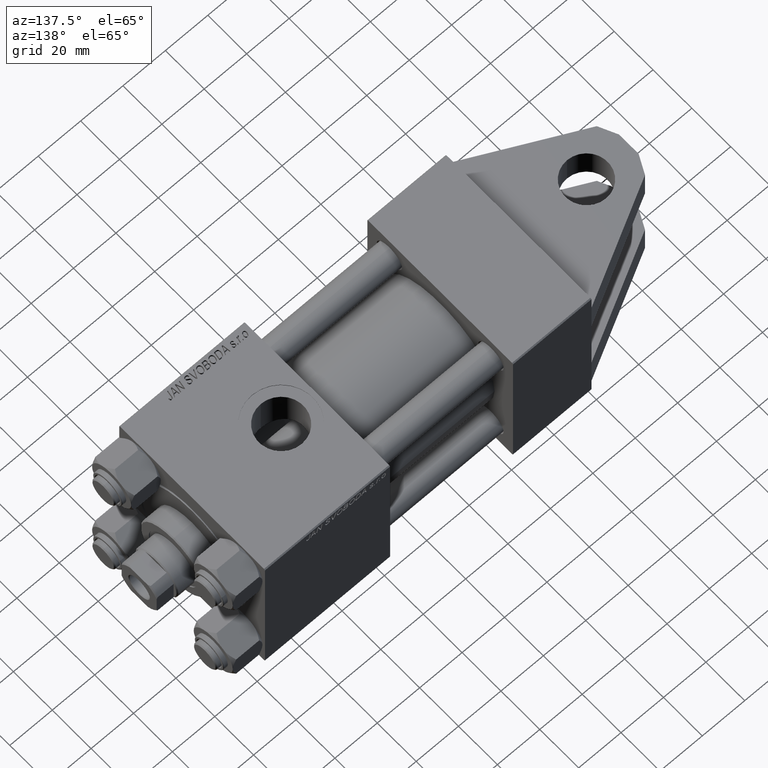
[diagram: clean part render]
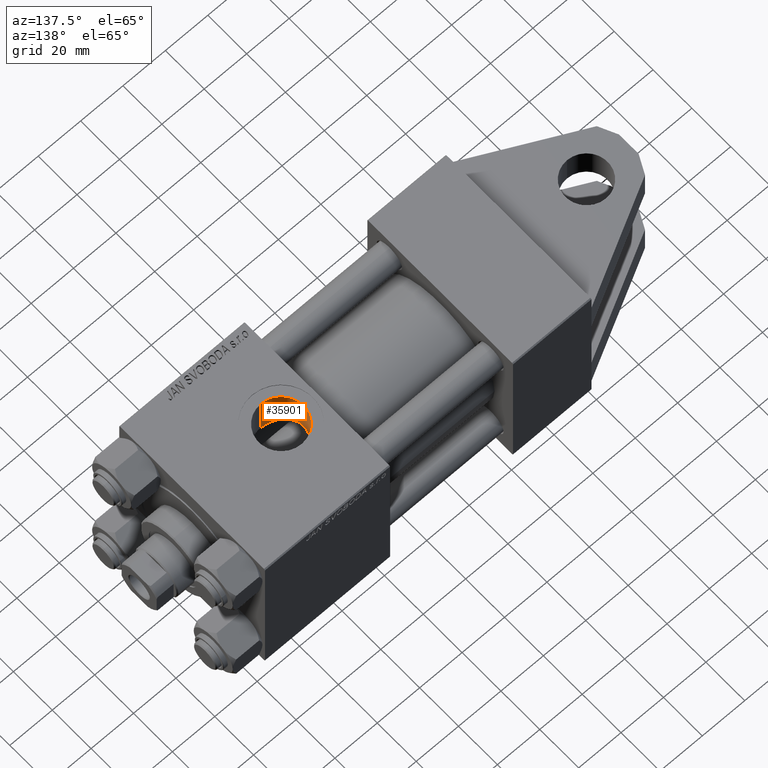
[diagram: same view with one face highlighted and labeled with its STEP entity id]
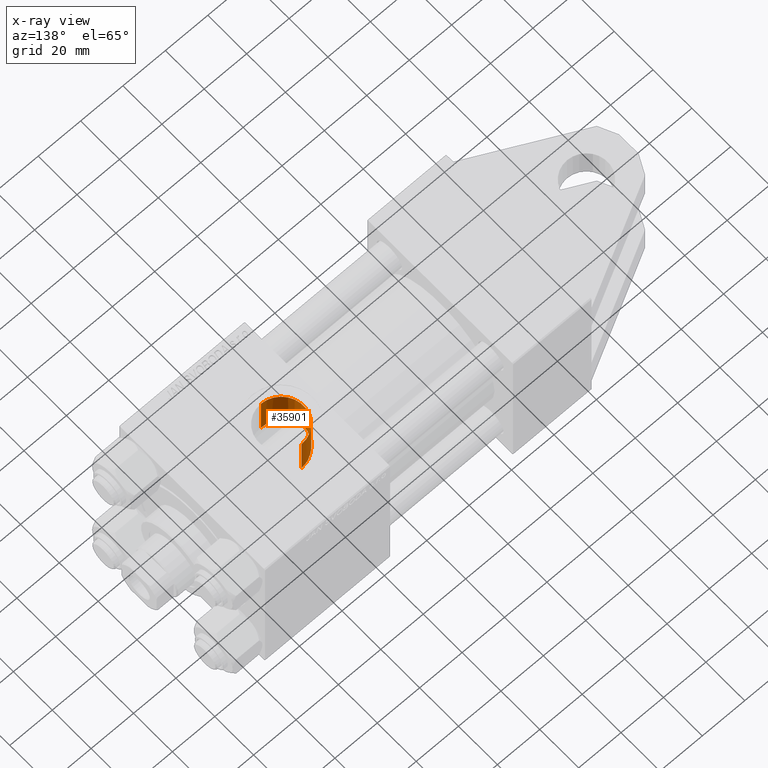
[diagram: x-ray of the same camera — body ghosted, the highlighted face saturated]
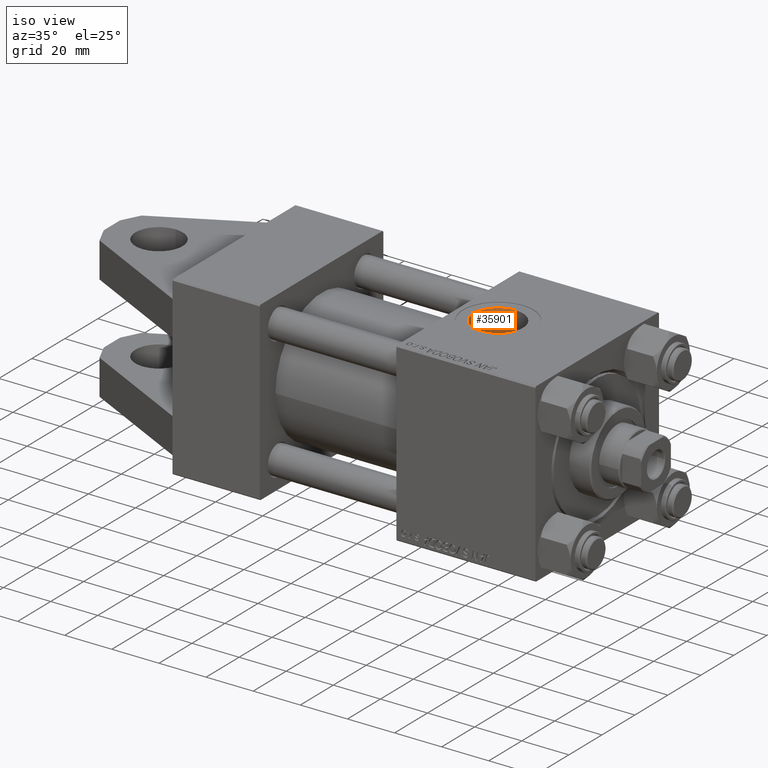
[diagram: same view with one face highlighted and labeled with its STEP entity id]
A machine part, auxiliary view. The second image highlights one B-rep face of the part: STEP entity #35901.
The next image is the same camera in x-ray: the body ghosted, the highlighted face saturated — about 0% of this face is hidden behind the body in this view.
A second angle (iso view) of the same face is appended — the face is thin or edge-on in the first view.
In plain terms, the highlighted cylindrical surface (edge-blend (fillet) strip) has radius 10.48 mm, axis along (-0, -0, 1).
Its self-contained STEP definition (entity closure, byte-faithful):
#873 = CARTESIAN_POINT ( 'NONE',  ( 103.6989398827357007, -19.47534253776997204, -6.406026005484629415 ) ) ;
#1055 = CARTESIAN_POINT ( 'NONE',  ( 105.0785991268058837, -18.92439466425729577, 7.897867506656478298 ) ) ;
#1115 = CARTESIAN_POINT ( 'NONE',  ( 101.5373249952253047, -20.49112648371635359, 0.6967750842739052208 ) ) ;
#1367 = CARTESIAN_POINT ( 'NONE',  ( 101.5204743707023312, -20.49975749248165258, -0.7063185015118484955 ) ) ;
#1549 = CARTESIAN_POINT ( 'NONE',  ( 112.0000000000000000, 37.50100000000014688, 9.974746723040454148E-15 ) ) ;
#1550 = CARTESIAN_POINT ( 'NONE',  ( 112.0000000000000000, -17.61872867150180966, 10.48000000000000576 ) ) ;
#4587 = CARTESIAN_POINT ( 'NONE',  ( 105.5977417294184164, -18.73818556942359237, 8.325035544684062927 ) ) ;
#4645 = CARTESIAN_POINT ( 'NONE',  ( 105.5995631067414280, -18.74369128016567743, -8.305322126603227773 ) ) ;
#4823 = CARTESIAN_POINT ( 'NONE',  ( 106.7301940101377511, -18.38209842868088373, 9.084287127380749283 ) ) ;
#4877 = CARTESIAN_POINT ( 'NONE',  ( 101.7964398410794615, -20.35997823095241799, -2.416228402922029339 ) ) ;
#5167 = CARTESIAN_POINT ( 'NONE',  ( 112.0000000000000000, 37.50100000000014688, -10.47999999999998977 ) ) ;
#6693 = VERTEX_POINT ( 'NONE', #13289 ) ;
#6904 = ORIENTED_EDGE ( 'NONE', *, *, #32514, .F. ) ;
#6979 = EDGE_LOOP ( 'NONE', ( #28764, #27443, #10186, #6904 ) ) ;
#8401 = CARTESIAN_POINT ( 'NONE',  ( 111.9999999999999858, -17.61872867150181321, -10.47999999999999510 ) ) ;
#8648 = CARTESIAN_POINT ( 'NONE',  ( 101.8828832166325071, -20.31668552684609352, -2.755963810480861476 ) ) ;
#8887 = CARTESIAN_POINT ( 'NONE',  ( 103.4940610177227569, -19.56378363404860821, -6.131479575291223227 ) ) ;
#9073 = DIRECTION ( 'NONE',  ( -0.000000000000000000, -1.000000000000000000, -8.673617379884036705E-17 ) ) ;
#9329 = DIRECTION ( 'NONE',  ( 0.000000000000000000, 0.000000000000000000, -1.000000000000000000 ) ) ;
#10186 = ORIENTED_EDGE ( 'NONE', *, *, #36229, .T. ) ;
#10192 = DIRECTION ( 'NONE',  ( 0.000000000000000000, -1.000000000000000000, -8.673617379884036705E-17 ) ) ;
#12166 = CARTESIAN_POINT ( 'NONE',  ( 108.5863732029060031, -17.94339702168920780, -9.914545255425009529 ) ) ;
#12358 = CARTESIAN_POINT ( 'NONE',  ( 104.3644938814354077, -19.20084332853422282, 7.186262701390806917 ) ) ;
#12418 = CARTESIAN_POINT ( 'NONE',  ( 102.2056687827119390, -20.15775460056885393, -3.744079838711323216 ) ) ;
#12562 = CARTESIAN_POINT ( 'NONE',  ( 112.0000000000000000, -37.29999999999999716, -10.47999999999999687 ) ) ;
#12604 = CARTESIAN_POINT ( 'NONE',  ( 110.6143144287221105, -17.66007330123387931, 10.41139618991194560 ) ) ;
#12844 = CYLINDRICAL_SURFACE ( 'NONE', #38727, 10.48000000000000043 ) ;
#12845 = CARTESIAN_POINT ( 'NONE',  ( 103.7049957090934527, -19.47275237916150559, 6.413928077769819325 ) ) ;
#12903 = CARTESIAN_POINT ( 'NONE',  ( 104.8305470275549567, -19.02032395108153295, -7.651277358185453181 ) ) ;
#13289 = CARTESIAN_POINT ( 'NONE',  ( 111.9999999999999858, -17.61872867150181321, -10.47999999999999510 ) ) ;
#14509 = B_SPLINE_CURVE_WITH_KNOTS ( 'NONE', 3,
 ( #8401, #39796, #31268, #31504, #46607, #12166, #36028, #19714, #39061, #27489, #4645, #42837, #12903, #19961, #28224, #873, #8887, #16173, #39298, #12418, #43081, #8648, #4877, #20196, #1367, #35517, #1115, #16419, #31756, #16674, #47105, #24210, #32002, #43568, #28410, #23912, #12845, #35224, #12358, #1055, #4587, #4823, #20637, #39241, #43509, #46791, #47042, #12604, #27924, #1550 ),
 .UNSPECIFIED., .F., .F.,
 ( 4, 2, 2, 2, 2, 2, 2, 2, 2, 2, 2, 2, 2, 2, 2, 2, 2, 2, 2, 2, 2, 2, 2, 2, 4 ),
 ( 1.398578778534940505E-17, 0.002085098827197961677, 0.003127648240796935576, 0.004170197654395909476, 0.006255296481593855540, 0.007297845895192829439, 0.008340395308791803339, 0.009382944722390776371, 0.01042549413598975114, 0.01251059296318769894, 0.01355314237678667197, 0.01459569179038564674, 0.01668079061758358586, 0.01772334003118256063, 0.01876588944478152846, 0.01980843885838049975, 0.02085098827197947105, 0.02293608709917739630, 0.02397863651277635719, 0.02502118592637532155, 0.02710628475357327802, 0.02919138358077123796, 0.03023393299437023354, 0.03127648240796922913, 0.03336158123516717866 ),
 .UNSPECIFIED. ) ;
#14795 = VERTEX_POINT ( 'NONE', #16809 ) ;
#15301 = LINE ( 'NONE', #19322, #33069 ) ;
#15444 = AXIS2_PLACEMENT_3D ( 'NONE', #45368, #10192, #48902 ) ;
#16173 = CARTESIAN_POINT ( 'NONE',  ( 102.9246593489173733, -19.81579007690006478, -5.284993006292004303 ) ) ;
#16419 = CARTESIAN_POINT ( 'NONE',  ( 101.6071888070158167, -20.45554254497156421, 1.393750078236606127 ) ) ;
#16674 = CARTESIAN_POINT ( 'NONE',  ( 101.7966205494873861, -20.35988782059471802, 2.416918645675846911 ) ) ;
#16809 = CARTESIAN_POINT ( 'NONE',  ( 112.0000000000000000, -37.29999999999999716, 10.48000000000000398 ) ) ;
#19322 = CARTESIAN_POINT ( 'NONE',  ( 112.0000000000000000, 37.50100000000014688, 10.48000000000000931 ) ) ;
#19714 = CARTESIAN_POINT ( 'NONE',  ( 107.3152551423600016, -18.22055821971025225, -9.399534179362843744 ) ) ;
#19961 = CARTESIAN_POINT ( 'NONE',  ( 104.3555554678392525, -19.20440573111459770, -7.176738042502329051 ) ) ;
#20020 = VERTEX_POINT ( 'NONE', #12562 ) ;
#20196 = CARTESIAN_POINT ( 'NONE',  ( 101.5902227235081767, -20.46384513083376788, -1.395899531135790905 ) ) ;
#20637 = CARTESIAN_POINT ( 'NONE',  ( 107.3279087038032316, -18.21742687740514555, 9.405522624613411153 ) ) ;
#23366 = EDGE_CURVE ( 'NONE', #6693, #30350, #14509, .T. ) ;
#23912 = CARTESIAN_POINT ( 'NONE',  ( 103.5000852107528431, -19.56116441448278565, 6.139806945683435657 ) ) ;
#24155 = VECTOR ( 'NONE', #47386, 1000.000000000000000 ) ;
#24210 = CARTESIAN_POINT ( 'NONE',  ( 102.0856432957107103, -20.21648401901770242, 3.414064357787316872 ) ) ;
#27443 = ORIENTED_EDGE ( 'NONE', *, *, #34375, .T. ) ;
#27489 = CARTESIAN_POINT ( 'NONE',  ( 105.8725275478957997, -18.65191114885656987, -8.508822594309947362 ) ) ;
#27924 = CARTESIAN_POINT ( 'NONE',  ( 111.3041984810621017, -17.61872867150180610, 10.48000000000000576 ) ) ;
#28224 = CARTESIAN_POINT ( 'NONE',  ( 104.1292176708083161, -19.29586956751500537, -6.927882344545544413 ) ) ;
#28410 = CARTESIAN_POINT ( 'NONE',  ( 102.9304623276855324, -19.81313001252935990, 5.294847441557609002 ) ) ;
#28764 = ORIENTED_EDGE ( 'NONE', *, *, #23366, .T. ) ;
#30350 = VERTEX_POINT ( 'NONE', #40791 ) ;
#31268 = CARTESIAN_POINT ( 'NONE',  ( 110.6023360502619113, -17.66125895070197771, -10.40936906255471683 ) ) ;
#31504 = CARTESIAN_POINT ( 'NONE',  ( 109.5857805743685276, -17.78018015198200175, -10.20399195237436096 ) ) ;
#31756 = CARTESIAN_POINT ( 'NONE',  ( 101.6592643547196957, -20.42906981586845916, 1.737709488202407337 ) ) ;
#31937 = FACE_OUTER_BOUND ( 'NONE', #6979, .T. ) ;
#32002 = CARTESIAN_POINT ( 'NONE',  ( 102.2049146225646155, -20.15811396168941627, 3.742424843370367959 ) ) ;
#32514 = EDGE_CURVE ( 'NONE', #6693, #20020, #46644, .T. ) ;
#33069 = VECTOR ( 'NONE', #34904, 1000.000000000000000 ) ;
#34375 = EDGE_CURVE ( 'NONE', #30350, #14795, #15301, .T. ) ;
#34904 = DIRECTION ( 'NONE',  ( -0.000000000000000000, -1.000000000000000000, -8.673617379884036705E-17 ) ) ;
#35224 = CARTESIAN_POINT ( 'NONE',  ( 104.1373342444244088, -19.29255042284153987, 6.937150480497082938 ) ) ;
#35517 = CARTESIAN_POINT ( 'NONE',  ( 101.5197663957567613, -20.50011942302709400, 0.3425484063042023020 ) ) ;
#35901 = ADVANCED_FACE ( 'NONE', ( #31937 ), #12844, .F. ) ;
#36028 = CARTESIAN_POINT ( 'NONE',  ( 108.2611955488631281, -18.00843789971822417, -9.796359556932751289 ) ) ;
#36229 = EDGE_CURVE ( 'NONE', #14795, #20020, #37094, .T. ) ;
#37094 = CIRCLE ( 'NONE', #15444, 10.48000000000000043 ) ;
#38727 = AXIS2_PLACEMENT_3D ( 'NONE', #1549, #9073, #9329 ) ;
#39061 = CARTESIAN_POINT ( 'NONE',  ( 106.7190607717961370, -18.38534749593159390, -9.077687108452138887 ) ) ;
#39241 = CARTESIAN_POINT ( 'NONE',  ( 108.2683474031596660, -18.00698426560946430, 9.799012303646884803 ) ) ;
#39298 = CARTESIAN_POINT ( 'NONE',  ( 102.6025250150979957, -19.96693071714090095, -4.688762655380815936 ) ) ;
#39796 = CARTESIAN_POINT ( 'NONE',  ( 111.2937250357269221, -17.61872867150181321, -10.47999999999999154 ) ) ;
#40791 = CARTESIAN_POINT ( 'NONE',  ( 112.0000000000000000, -17.61872867150180966, 10.48000000000000576 ) ) ;
#42837 = CARTESIAN_POINT ( 'NONE',  ( 105.0791999197034983, -18.92770044493005344, -7.876959711703407585 ) ) ;
#43081 = CARTESIAN_POINT ( 'NONE',  ( 102.0878896789949124, -20.21538003116037530, -3.420739323187334868 ) ) ;
#43509 = CARTESIAN_POINT ( 'NONE',  ( 108.5894928040183203, -17.94285099751830614, 9.915522212990266482 ) ) ;
#43568 = CARTESIAN_POINT ( 'NONE',  ( 102.6059549892851095, -19.96528801265269237, 4.696645970771022860 ) ) ;
#45368 = CARTESIAN_POINT ( 'NONE',  ( 112.0000000000000000, -37.29999999999999716, 3.486794186713383443E-15 ) ) ;
#46607 = CARTESIAN_POINT ( 'NONE',  ( 109.2503705221689927, -17.82899635519297021, -10.11882370961919975 ) ) ;
#46644 = LINE ( 'NONE', #5167, #24155 ) ;
#46791 = CARTESIAN_POINT ( 'NONE',  ( 109.2482081446913895, -17.82937747091141389, 10.11814121640942687 ) ) ;
#47042 = CARTESIAN_POINT ( 'NONE',  ( 109.5882611182071287, -17.77978347898471867, 10.20468712638896491 ) ) ;
#47105 = CARTESIAN_POINT ( 'NONE',  ( 101.8819034586091021, -20.31717585818016758, 2.752167632629415994 ) ) ;
#47386 = DIRECTION ( 'NONE',  ( -0.000000000000000000, -1.000000000000000000, -8.673617379884036705E-17 ) ) ;
#48902 = DIRECTION ( 'NONE',  ( 0.000000000000000000, 0.000000000000000000, -1.000000000000000000 ) ) ;